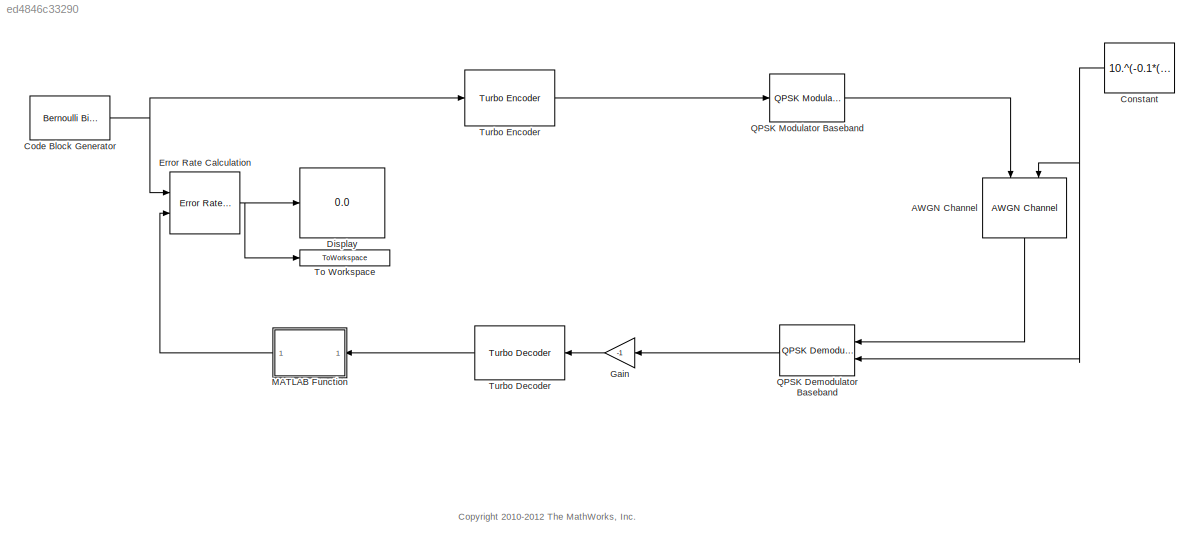
MODEL slx_ed4846c33290
KIND model
CONFIG PreLoadFcn = EbNo=0;\nmaxNumErrs=200;\nmaxNumBits=1e8;\nload Parameters.mat
BLOCK [Reference] AWGN Channel  REF=commchan3/AWGN
Channel
  EbNodB = 10
  EsNodB = 10
  InputProcessing = Columns as channels (frame based)
  Ports = [2, 1]
  Ps = 1
  SNRdB = 10
  SourceBlock = commchan3/AWGN\nChannel
  SourceType = AWGN Channel
  Tsym = 1
  UserDataPersistent = on
  bitsPerSym = 2
  noiseMode = Variance from port
  seed = 67890
  variance = 10.^(-0.1*(EbNo + 10*log10(1/2) + 10*log10(2)))
BLOCK [Reference] Code Block Generator  REF=commrandsrc2/Bernoulli Binary
Generator
  P = 0.5
  Ports = [0, 1]
  SourceBlock = commrandsrc2/Bernoulli Binary\nGenerator
  SourceType = Bernoulli Binary Generator
  Ts = 1/2048
  frameBased = on
  orient = off
  outDataType = double
  sampPerFrame = 2048
  seed = 12345
BLOCK [Constant] Constant
  Value = 10.^(-0.1*(EbNo + 10*log10(2048/(3*2048 + 4*3)) + 10*log10(2)))
  VectorParams1D = off
BLOCK [Display] Display
  Decimation = 1
  Ports = [1]
BLOCK [Reference] Error Rate Calculation  REF=commsink2/Error Rate
Calculation
  N = 0
  PMode = Port
  Ports = [2, 1]
  RsMode2 = off
  SourceBlock = commsink2/Error Rate\nCalculation
  SourceType = Error Rate Calculation
  WsName = ErrorVec1
  cp_mode = Entire frame
  maxBits = maxNumBits
  numErr = maxNumErrs
  st_delay = 0
  stop = on
  subframe = []
BLOCK [Gain] Gain
  Gain = -1
  Multiplication = Matrix(K*u)
  OutDataTypeStr = Inherit: Inherit via internal rule
  ParamDataTypeStr = Inherit: Inherit via internal rule
  SaturateOnIntegerOverflow = off
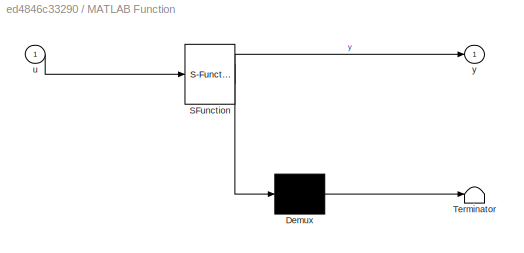
BLOCK [SubSystem] MATLAB Function
  ErrorFcn = Stateflow.Translate.translate
  PermitHierarchicalResolution = ExplicitOnly
  Ports = [1, 1]
  RequestExecContextInheritance = off
  SFBlockType = MATLAB Function
  TreatAsAtomicUnit = on
BLOCK [Demux] MATLAB Function/ Demux 
  Outputs = 1
  Ports = [1, 1]
BLOCK [S-Function] MATLAB Function/ SFunction 
  EnableBusSupport = off
  FunctionName = sf_sfun
  PortCounts = [1 2]
  Ports = [1, 2]
  Tag = Stateflow S-Function doc_design_iteration_turbo 2
BLOCK [Terminator] MATLAB Function/ Terminator 
BLOCK [Inport] MATLAB Function/u
  IconDisplay = Port number
BLOCK [Outport] MATLAB Function/y
  IconDisplay = Port number
BLOCK [Reference] QPSK Demodulator Baseband  REF=commdigbbndpm3/QPSK
Demodulator
Baseband
  Dec = Gray
  DecType = Log-likelihood ratio
  OutType = Bit
  Ph = 0
  Ports = [2, 1]
  SourceBlock = commdigbbndpm3/QPSK\nDemodulator\nBaseband
  SourceType = QPSK Demodulator Baseband
  VarSource = Port
  Variance = 1
  derotateFactorDTMode = Same word length as input
  derotateFactorWordLen = 16
  outDtype1 = boolean
  outDtype2 = Inherit via internal rule
BLOCK [Reference] QPSK Modulator Baseband  REF=commdigbbndpm3/QPSK
Modulator
Baseband
  Enc = Gray
  InType = Bit
  Ph = 0
  Ports = [1, 1]
  SourceBlock = commdigbbndpm3/QPSK\nModulator\nBaseband
  SourceType = QPSK Modulator Baseband
  outDtype = double
  outFracLen = 15
  outFracLenMode = Best precision
  outUDDataType = sfix(16)
  outWordLen = 16
BLOCK [ToWorkspace] To Workspace
  MaxDataPoints = 1
  Ports = [1]
  SampleTime = -1
  VariableName = ber
BLOCK [Reference] Turbo Decoder  REF=commcnvcod2/Turbo Decoder
  Algorithm = True APP
  InterleaverIndices = turbo_interleaver
  InterleaverIndicesSource = Property
  NumIterations = 6
  NumScalingBits = 3
  Ports = [1, 1]
  SimulateUsing = Interpreted execution
  SourceBlock = commcnvcod2/Turbo Decoder
  SourceType = Turbo Decoder
  TrellisStructure = poly2trellis(4, [13 15], 13)
BLOCK [Reference] Turbo Encoder  REF=commcnvcod2/Turbo Encoder
  InterleaverIndices = turbo_interleaver
  InterleaverIndicesSource = Property
  Ports = [1, 1]
  SimulateUsing = Interpreted execution
  SourceBlock = commcnvcod2/Turbo Encoder
  SourceType = Turbo Encoder
  TrellisStructure = poly2trellis(4, [13 15], 13)
ANNOTATION (root): <copyright redacted>
LINE AWGN Channel:1 -> QPSK Demodulator Baseband:1
NET Code Block Generator:1 -> Error Rate Calculation:1, Turbo Encoder:1
NET Constant:1 -> AWGN Channel:2, QPSK Demodulator Baseband:2
NET Error Rate Calculation:1 -> Display:1, To Workspace:1
LINE Gain:1 -> Turbo Decoder:1
LINE MATLAB Function:1 -> Error Rate Calculation:2
LINE QPSK Demodulator Baseband:1 -> Gain:1
LINE QPSK Modulator Baseband:1 -> AWGN Channel:1
LINE Turbo Decoder:1 -> MATLAB Function:1
LINE Turbo Encoder:1 -> QPSK Modulator Baseband:1
note: NET lines group one-source signal fan-out (src -> all destinations, sorted); 1:1 wires keep LINE
